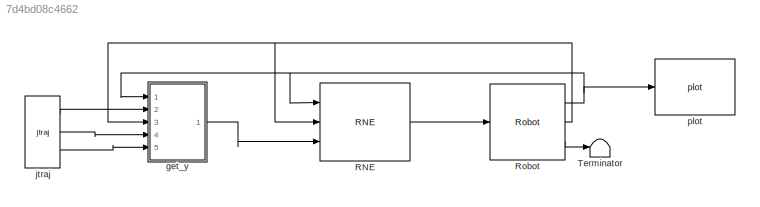
MODEL slx_7d4bd08c4662
KIND model
CONFIG AbsTol = auto
CONFIG EnableMultiTasking = off
CONFIG FixedStep = auto
CONFIG MaxStep = auto
CONFIG MinStep = auto
CONFIG RelTol = 1e-3
CONFIG SampleTimeConstraint = Unconstrained
CONFIG Solver = VariableStepAuto
CONFIG SolverName = VariableStepAuto
CONFIG StartTime = 0.0
CONFIG StopTime = tf
BLOCK [Reference] RNE  REF=roblocks/Arm/RNE  (lib defined in mdl_2a292b13c81b, mdl_69400f8cfe22, +12 more)
  Ports = [3, 1]
  SourceBlock = roblocks/Arm/RNE
BLOCK [Reference] Robot  REF=roblocks/Arm/Robot  (lib defined in mdl_2a292b13c81b, mdl_69400f8cfe22, +12 more)
  Ports = [1, 3]
  SourceBlock = roblocks/Arm/Robot
BLOCK [Terminator] Terminator
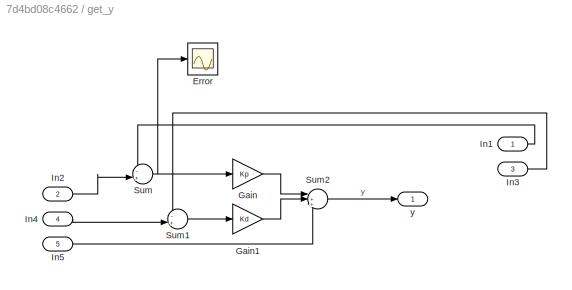
BLOCK [SubSystem] get_y
  Ports = [5, 1]
  RequestExecContextInheritance = off
BLOCK [Scope] get_y/Error
  Floating = off
  NumInputPorts = 1
  Ports = [1]
  ScopeSpecificationString = Simulink.scopes.TimeScopeBlockCfg('CurrentConfiguration', extmgr.ConfigurationSet(extmgr.Configuration('Core','General UI',true),extmgr.Configuration('Core','Source UI',true),extmgr.Configuration('Sources','WiredSimulink',true),extmgr.Configuration('Visuals','Time Domain',true,'SerializedDisplays',{struct('MinYLimReal','-0.06615','MaxYLimReal','0.03242','YLabelReal','','MinYLimMag','0.00000','MaxY...<+1441ch>
BLOCK [Gain] get_y/Gain
  Gain = Kp
BLOCK [Gain] get_y/Gain1
  Gain = Kd
BLOCK [Inport] get_y/In1
BLOCK [Inport] get_y/In2
  Port = 2
BLOCK [Inport] get_y/In3
  Port = 3
BLOCK [Inport] get_y/In4
  Port = 4
BLOCK [Inport] get_y/In5
  Port = 5
BLOCK [Sum] get_y/Sum
  Inputs = -+|
  Ports = [2, 1]
BLOCK [Sum] get_y/Sum1
  Inputs = -+|
  Ports = [2, 1]
BLOCK [Sum] get_y/Sum2
  Inputs = |+++
  Ports = [3, 1]
BLOCK [Outport] get_y/y
BLOCK [Reference] jtraj  REF=roblocks/Toolbox/jtraj  (lib defined in mdl_2a292b13c81b, mdl_69400f8cfe22, +12 more)
  Ports = [0, 3]
  SourceBlock = roblocks/Toolbox/jtraj
BLOCK [Reference] plot  REF=roblocks/Arm/plot  (lib defined in mdl_2a292b13c81b, mdl_69400f8cfe22, +12 more)
  Ports = [1]
  SourceBlock = roblocks/Arm/plot
LINE RNE:1 -> Robot:1
NET Robot:1 -> RNE:1, get_y:1, plot:1
NET Robot:2 -> RNE:2, get_y:3
LINE Robot:3 -> Terminator:1
LINE get_y/Gain1:1 -> get_y/Sum2:2
LINE get_y/Gain:1 -> get_y/Sum2:1
LINE get_y/In1:1 -> get_y/Sum:1
LINE get_y/In2:1 -> get_y/Sum:2
LINE get_y/In3:1 -> get_y/Sum1:1
LINE get_y/In4:1 -> get_y/Sum1:2
LINE get_y/In5:1 -> get_y/Sum2:3
LINE get_y/Sum1:1 -> get_y/Gain1:1
LINE get_y/Sum2:1 -> get_y/y:1
NET get_y/Sum:1 -> get_y/Error:1, get_y/Gain:1
LINE get_y:1 -> RNE:3
LINE jtraj:1 -> get_y:2
LINE jtraj:2 -> get_y:4
LINE jtraj:3 -> get_y:5
note: NET lines group one-source signal fan-out (src -> all destinations, sorted); 1:1 wires keep LINE
